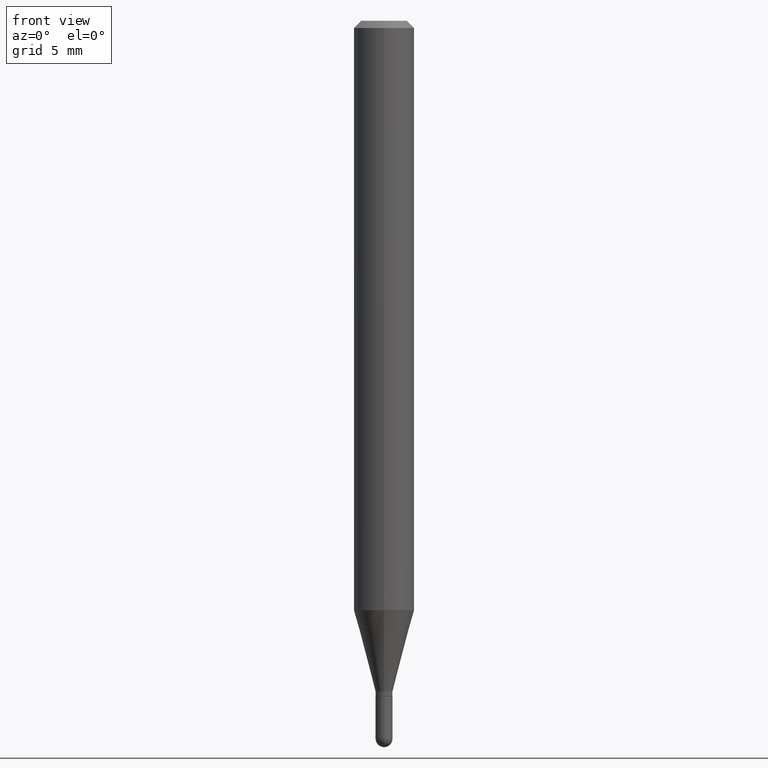
[diagram: clean part render]
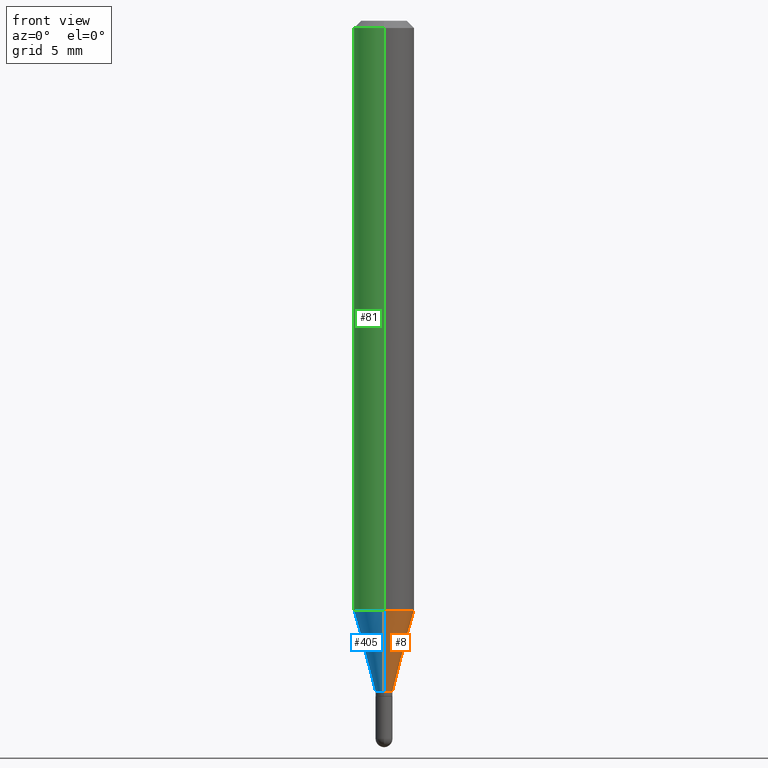
[diagram: same view with three faces highlighted in distinct colors, each labeled with its STEP entity id]
A machine part, front view with three faces highlighted in distinct colors.
Their STEP definitions:

[orange] entity #8 — the highlighted conical surface has half-angle 15 deg.
#8 = ADVANCED_FACE ( 'NONE', ( #65 ), #86, .T. ) ;
#11 = DIRECTION ( 'NONE',  ( -2.445470767023835515E-29, 3.491478530810524954E-15, 1.000000000000000000 ) ) ;
#25 = ORIENTED_EDGE ( 'NONE', *, *, #52, .F. ) ;
#29 = AXIS2_PLACEMENT_3D ( 'NONE', #399, #11, #494 ) ;
#51 = ORIENTED_EDGE ( 'NONE', *, *, #480, .F. ) ;
#52 = EDGE_CURVE ( 'NONE', #412, #210, #445, .T. ) ;
#64 = VERTEX_POINT ( 'NONE', #420 ) ;
#65 = FACE_OUTER_BOUND ( 'NONE', #261, .T. ) ;
#74 = LINE ( 'NONE', #238, #369 ) ;
#86 = CONICAL_SURFACE ( 'NONE', #145, 0.01749999999999992534, 0.2617993877991502960 ) ;
#92 = EDGE_CURVE ( 'NONE', #315, #210, #487, .T. ) ;
#105 = DIRECTION ( 'NONE',  ( -2.445470767023835515E-29, 3.491478530810524954E-15, 1.000000000000000000 ) ) ;
#134 = CIRCLE ( 'NONE', #461, 0.01749999999999992534 ) ;
#137 = CARTESIAN_POINT ( 'NONE',  ( 4.440892098500920998E-16, 0.06249999999999572564, -1.217057713659400964 ) ) ;
#143 = CARTESIAN_POINT ( 'NONE',  ( 3.386977012328011606E-29, -4.835697765172575624E-15, -1.384999999999999787 ) ) ;
#145 = AXIS2_PLACEMENT_3D ( 'NONE', #226, #496, #262 ) ;
#203 = DIRECTION ( 'NONE',  ( -1.807323732225330534E-15, -0.2588190451025182415, 0.9659258262890689783 ) ) ;
#210 = VERTEX_POINT ( 'NONE', #137 ) ;
#212 = VECTOR ( 'NONE', #293, 39.37007874015748143 ) ;
#216 = CARTESIAN_POINT ( 'NONE',  ( 1.243449787580508491E-16, 0.01749999999999508893, -1.384999999999999787 ) ) ;
#226 = CARTESIAN_POINT ( 'NONE',  ( 3.386977012328011606E-29, -4.835697765172575624E-15, -1.384999999999999787 ) ) ;
#234 = DIRECTION ( 'NONE',  ( -6.982962677686265133E-15, -1.000000000000000000, 0.000000000000000000 ) ) ;
#238 = CARTESIAN_POINT ( 'NONE',  ( -1.222018468594752731E-16, -0.01750000000000476175, -1.384999999999999787 ) ) ;
#261 = EDGE_LOOP ( 'NONE', ( #464, #489, #25, #51 ) ) ;
#262 = DIRECTION ( 'NONE',  ( -6.982962677686265133E-15, -1.000000000000000000, 0.000000000000000000 ) ) ;
#293 = DIRECTION ( 'NONE',  ( 1.839019923739600710E-15, 0.2588190451025250138, 0.9659258262890670910 ) ) ;
#315 = VERTEX_POINT ( 'NONE', #414 ) ;
#325 = EDGE_CURVE ( 'NONE', #64, #315, #134, .T. ) ;
#369 = VECTOR ( 'NONE', #203, 39.37007874015748143 ) ;
#399 = CARTESIAN_POINT ( 'NONE',  ( 2.976279060534930042E-29, -4.249330877999140897E-15, -1.217057713659400742 ) ) ;
#412 = VERTEX_POINT ( 'NONE', #477 ) ;
#414 = CARTESIAN_POINT ( 'NONE',  ( 2.842170943040716840E-16, 0.01749999999999508893, -1.384999999999999787 ) ) ;
#420 = CARTESIAN_POINT ( 'NONE',  ( -1.222018468594752731E-16, -0.01750000000000476175, -1.384999999999999787 ) ) ;
#445 = CIRCLE ( 'NONE', #29, 0.06250000000000000000 ) ;
#461 = AXIS2_PLACEMENT_3D ( 'NONE', #143, #105, #234 ) ;
#464 = ORIENTED_EDGE ( 'NONE', *, *, #325, .T. ) ;
#477 = CARTESIAN_POINT ( 'NONE',  ( -4.364351673553618899E-16, -0.06250000000000427436, -1.217057713659400520 ) ) ;
#480 = EDGE_CURVE ( 'NONE', #64, #412, #74, .T. ) ;
#487 = LINE ( 'NONE', #216, #212 ) ;
#489 = ORIENTED_EDGE ( 'NONE', *, *, #92, .T. ) ;
#494 = DIRECTION ( 'NONE',  ( -6.982962677686265922E-15, -1.000000000000000000, 4.370956789862821150E-15 ) ) ;
#496 = DIRECTION ( 'NONE',  ( -2.445470767023835515E-29, 3.491478530810524954E-15, 1.000000000000000000 ) ) ;

[blue] entity #405 — the highlighted conical surface has half-angle 15 deg.
#7 = DIRECTION ( 'NONE',  ( -2.445470767023835515E-29, 3.491478530810524954E-15, 1.000000000000000000 ) ) ;
#46 = CARTESIAN_POINT ( 'NONE',  ( 2.976279060534930042E-29, -4.249330877999140897E-15, -1.217057713659400742 ) ) ;
#64 = VERTEX_POINT ( 'NONE', #420 ) ;
#74 = LINE ( 'NONE', #238, #369 ) ;
#92 = EDGE_CURVE ( 'NONE', #315, #210, #487, .T. ) ;
#101 = CIRCLE ( 'NONE', #392, 0.01749999999999992534 ) ;
#106 = AXIS2_PLACEMENT_3D ( 'NONE', #510, #122, #472 ) ;
#122 = DIRECTION ( 'NONE',  ( -2.445470767023835515E-29, 3.491478530810524954E-15, 1.000000000000000000 ) ) ;
#137 = CARTESIAN_POINT ( 'NONE',  ( 4.440892098500920998E-16, 0.06249999999999572564, -1.217057713659400964 ) ) ;
#174 = ORIENTED_EDGE ( 'NONE', *, *, #305, .T. ) ;
#176 = ORIENTED_EDGE ( 'NONE', *, *, #92, .F. ) ;
#188 = CIRCLE ( 'NONE', #269, 0.06250000000000000000 ) ;
#191 = CARTESIAN_POINT ( 'NONE',  ( 3.386977012328011606E-29, -4.835697765172575624E-15, -1.384999999999999787 ) ) ;
#203 = DIRECTION ( 'NONE',  ( -1.807323732225330534E-15, -0.2588190451025182415, 0.9659258262890689783 ) ) ;
#210 = VERTEX_POINT ( 'NONE', #137 ) ;
#212 = VECTOR ( 'NONE', #293, 39.37007874015748143 ) ;
#216 = CARTESIAN_POINT ( 'NONE',  ( 1.243449787580508491E-16, 0.01749999999999508893, -1.384999999999999787 ) ) ;
#238 = CARTESIAN_POINT ( 'NONE',  ( -1.222018468594752731E-16, -0.01750000000000476175, -1.384999999999999787 ) ) ;
#266 = EDGE_CURVE ( 'NONE', #210, #412, #188, .T. ) ;
#269 = AXIS2_PLACEMENT_3D ( 'NONE', #46, #7, #444 ) ;
#285 = EDGE_LOOP ( 'NONE', ( #176, #174, #486, #409 ) ) ;
#293 = DIRECTION ( 'NONE',  ( 1.839019923739600710E-15, 0.2588190451025250138, 0.9659258262890670910 ) ) ;
#304 = DIRECTION ( 'NONE',  ( -2.445470767023835515E-29, 3.491478530810524954E-15, 1.000000000000000000 ) ) ;
#305 = EDGE_CURVE ( 'NONE', #315, #64, #101, .T. ) ;
#314 = FACE_OUTER_BOUND ( 'NONE', #285, .T. ) ;
#315 = VERTEX_POINT ( 'NONE', #414 ) ;
#338 = DIRECTION ( 'NONE',  ( -6.982962677686265133E-15, -1.000000000000000000, 0.000000000000000000 ) ) ;
#369 = VECTOR ( 'NONE', #203, 39.37007874015748143 ) ;
#380 = CONICAL_SURFACE ( 'NONE', #106, 0.01749999999999992534, 0.2617993877991502960 ) ;
#392 = AXIS2_PLACEMENT_3D ( 'NONE', #191, #304, #338 ) ;
#405 = ADVANCED_FACE ( 'NONE', ( #314 ), #380, .T. ) ;
#409 = ORIENTED_EDGE ( 'NONE', *, *, #266, .F. ) ;
#412 = VERTEX_POINT ( 'NONE', #477 ) ;
#414 = CARTESIAN_POINT ( 'NONE',  ( 2.842170943040716840E-16, 0.01749999999999508893, -1.384999999999999787 ) ) ;
#420 = CARTESIAN_POINT ( 'NONE',  ( -1.222018468594752731E-16, -0.01750000000000476175, -1.384999999999999787 ) ) ;
#444 = DIRECTION ( 'NONE',  ( -6.982962677686265922E-15, -1.000000000000000000, 4.370956789862821150E-15 ) ) ;
#472 = DIRECTION ( 'NONE',  ( -6.982962677686265133E-15, -1.000000000000000000, 0.000000000000000000 ) ) ;
#477 = CARTESIAN_POINT ( 'NONE',  ( -4.364351673553618899E-16, -0.06250000000000427436, -1.217057713659400520 ) ) ;
#480 = EDGE_CURVE ( 'NONE', #64, #412, #74, .T. ) ;
#486 = ORIENTED_EDGE ( 'NONE', *, *, #480, .T. ) ;
#487 = LINE ( 'NONE', #216, #212 ) ;
#510 = CARTESIAN_POINT ( 'NONE',  ( 3.386977012328011606E-29, -4.835697765172575624E-15, -1.384999999999999787 ) ) ;

[green] entity #81 — the highlighted cylindrical surface (edge-blend (fillet) strip) has radius 1.5875 mm, axis along (-0, 0, 1).
#4 = LINE ( 'NONE', #283, #213 ) ;
#7 = DIRECTION ( 'NONE',  ( -2.445470767023835515E-29, 3.491478530810524954E-15, 1.000000000000000000 ) ) ;
#28 = DIRECTION ( 'NONE',  ( -2.445470767023835515E-29, 3.491478530810524954E-15, 1.000000000000000000 ) ) ;
#31 = EDGE_CURVE ( 'NONE', #374, #159, #192, .T. ) ;
#38 = CARTESIAN_POINT ( 'NONE',  ( -4.364351673553916201E-16, -0.06250000000000000000, 2.182174081756577850E-16 ) ) ;
#46 = CARTESIAN_POINT ( 'NONE',  ( 2.976279060534930042E-29, -4.249330877999140897E-15, -1.217057713659400742 ) ) ;
#54 = CYLINDRICAL_SURFACE ( 'NONE', #434, 0.06250000000000000000 ) ;
#80 = LINE ( 'NONE', #38, #281 ) ;
#81 = ADVANCED_FACE ( 'NONE', ( #449 ), #54, .T. ) ;
#104 = ORIENTED_EDGE ( 'NONE', *, *, #197, .F. ) ;
#133 = DIRECTION ( 'NONE',  ( -6.982962677686265922E-15, -1.000000000000000000, 3.483106191921935554E-15 ) ) ;
#137 = CARTESIAN_POINT ( 'NONE',  ( 4.440892098500920998E-16, 0.06249999999999572564, -1.217057713659400964 ) ) ;
#159 = VERTEX_POINT ( 'NONE', #367 ) ;
#188 = CIRCLE ( 'NONE', #269, 0.06250000000000000000 ) ;
#192 = CIRCLE ( 'NONE', #249, 0.06250000000000000000 ) ;
#197 = EDGE_CURVE ( 'NONE', #210, #374, #4, .T. ) ;
#209 = ORIENTED_EDGE ( 'NONE', *, *, #31, .F. ) ;
#210 = VERTEX_POINT ( 'NONE', #137 ) ;
#213 = VECTOR ( 'NONE', #438, 39.37007874015748143 ) ;
#241 = DIRECTION ( 'NONE',  ( -2.445470767023835515E-29, 3.491478530810524954E-15, 1.000000000000000000 ) ) ;
#249 = AXIS2_PLACEMENT_3D ( 'NONE', #492, #28, #133 ) ;
#266 = EDGE_CURVE ( 'NONE', #210, #412, #188, .T. ) ;
#269 = AXIS2_PLACEMENT_3D ( 'NONE', #46, #7, #444 ) ;
#281 = VECTOR ( 'NONE', #241, 39.37007874015748143 ) ;
#283 = CARTESIAN_POINT ( 'NONE',  ( 4.440892098500625669E-16, 0.06250000000000000000, -2.182174081756577850E-16 ) ) ;
#326 = CARTESIAN_POINT ( 'NONE',  ( 4.440892098500924943E-16, 0.06249999999999993755, -0.01499999999999997863 ) ) ;
#330 = EDGE_LOOP ( 'NONE', ( #104, #366, #337, #209 ) ) ;
#337 = ORIENTED_EDGE ( 'NONE', *, *, #459, .T. ) ;
#366 = ORIENTED_EDGE ( 'NONE', *, *, #266, .T. ) ;
#367 = CARTESIAN_POINT ( 'NONE',  ( -4.364351673553912750E-16, -0.06250000000000005551, -0.01499999999999954321 ) ) ;
#374 = VERTEX_POINT ( 'NONE', #326 ) ;
#382 = DIRECTION ( 'NONE',  ( -6.982962677686265922E-15, -1.000000000000000000, 3.491478530810524560E-15 ) ) ;
#410 = DIRECTION ( 'NONE',  ( -2.445470767023835515E-29, 3.491478530810524954E-15, 1.000000000000000000 ) ) ;
#412 = VERTEX_POINT ( 'NONE', #477 ) ;
#434 = AXIS2_PLACEMENT_3D ( 'NONE', #495, #410, #382 ) ;
#438 = DIRECTION ( 'NONE',  ( -2.445470767023835515E-29, 3.491478530810524954E-15, 1.000000000000000000 ) ) ;
#444 = DIRECTION ( 'NONE',  ( -6.982962677686265922E-15, -1.000000000000000000, 4.370956789862821150E-15 ) ) ;
#449 = FACE_OUTER_BOUND ( 'NONE', #330, .T. ) ;
#459 = EDGE_CURVE ( 'NONE', #412, #159, #80, .T. ) ;
#477 = CARTESIAN_POINT ( 'NONE',  ( -4.364351673553618899E-16, -0.06250000000000427436, -1.217057713659400520 ) ) ;
#492 = CARTESIAN_POINT ( 'NONE',  ( 3.668206150535694734E-31, -5.237217796215704281E-17, -0.01499999999999976179 ) ) ;
#495 = CARTESIAN_POINT ( 'NONE',  ( 0.000000000000000000, 0.000000000000000000, 0.000000000000000000 ) ) ;